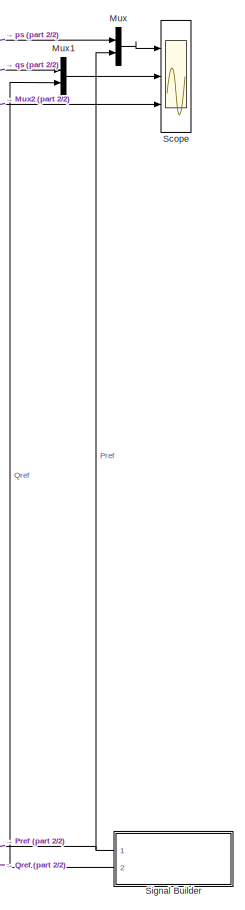
[diagram: root canvas - part 1/2, right side, full height]
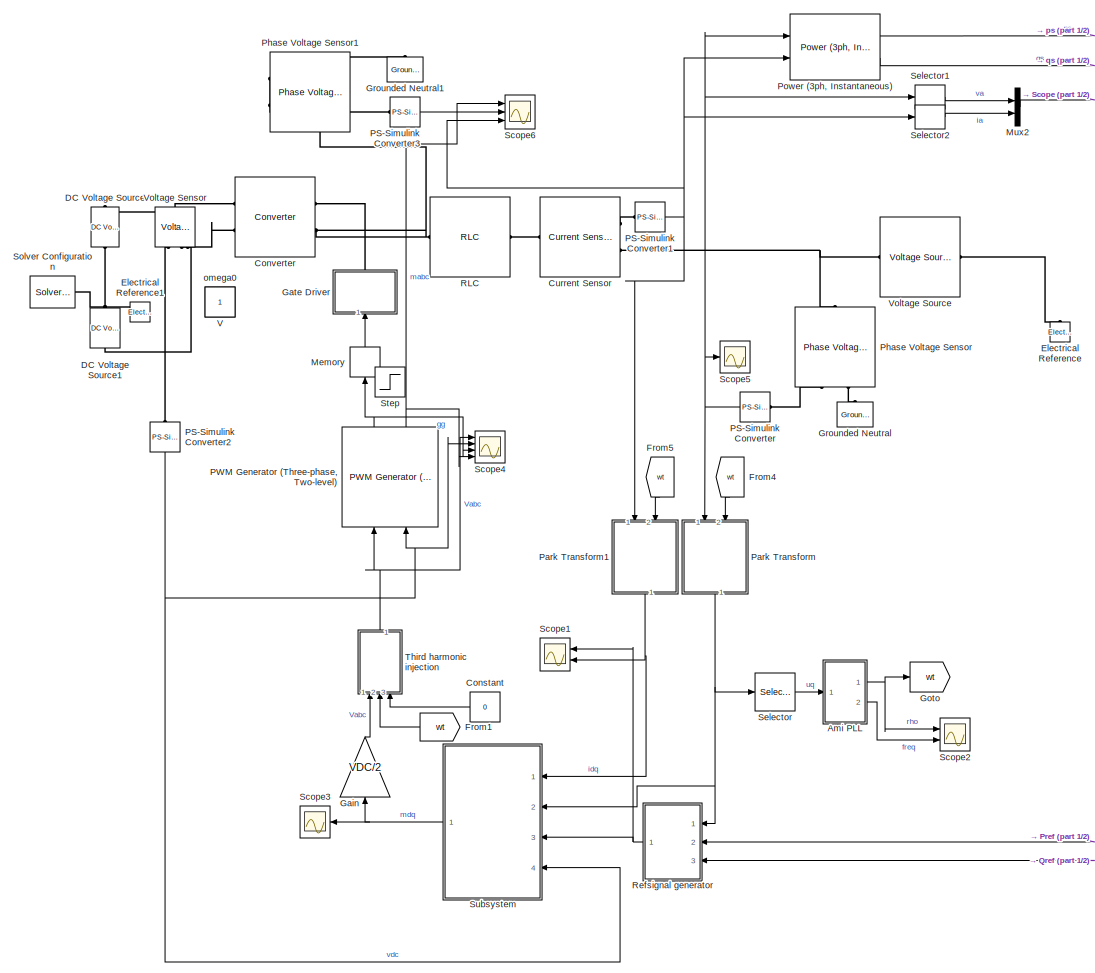
[diagram: root canvas - part 2/2, most of the canvas]
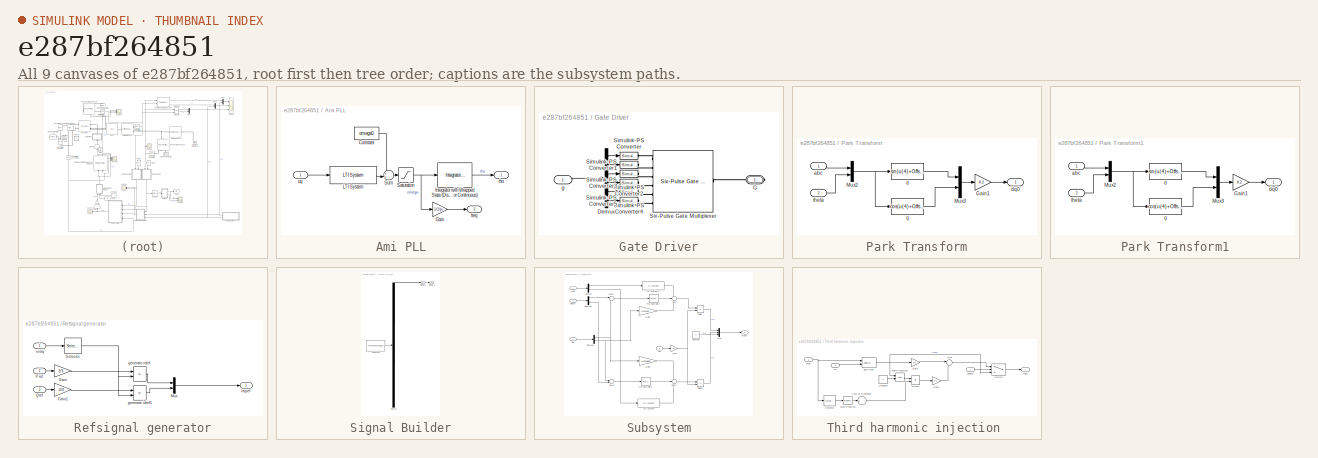
[diagram: thumbnail index - all 9 canvases of the model, root first then tree order]
MODEL slx_e287bf264851
KIND model
CONFIG AbsTol = auto
CONFIG EnableMultiTasking = off
CONFIG FixedStep = 2e-5
CONFIG InitFcn = current_controlled_VSC_ami8p2_design\n
CONFIG MaxStep = 2e-5
CONFIG MinStep = auto
CONFIG RelTol = 1e-3
CONFIG SampleTimeConstraint = Unconstrained
CONFIG Solver = VariableStepAuto
CONFIG SolverName = VariableStepAuto
CONFIG StartTime = 0.0
CONFIG StopTime = 0.5
BLOCK [SubSystem] Ami PLL
  Ports = [1, 2]
  RequestExecContextInheritance = off
  Variant = off
BLOCK [Constant] Ami PLL/Constant
  Value = omega0
BLOCK [Gain] Ami PLL/Gain
  Gain = 1/2/pi
  OutDataTypeStr = Inherit: Inherit via internal rule
  ParamDataTypeStr = Inherit: Inherit via internal rule
  SaturateOnIntegerOverflow = off
BLOCK [Reference] Ami PLL/Integrator with Wrapped State (Discrete or Continuous)  REF=peGeneralControl/Integrator with
Wrapped State
(Discrete or Continuous)
  Ports = [1, 1]
  SourceBlock = peGeneralControl/Integrator with\nWrapped State\n(Discrete or Continuous)
  SourceType = Integrator with Wrapped State (Discrete or Continuous)
BLOCK [Reference] Ami PLL/LTI System  REF=cstblocks/LTI System
  Ports = [1, 1]
  SourceBlock = cstblocks/LTI System
  SourceProductBaseCode = CT
  SourceProductName = Control System Toolbox
  SourceType = LTI Block
BLOCK [Saturate] Ami PLL/Saturation
  InputPortMap = u0
  LowerLimit = PLL_wmin
  Ports = [1, 1]
  UpperLimit = PLL_wmax
BLOCK [Sum] Ami PLL/Sum
  IconShape = round
  InputSameDT = off
  Inputs = ++|
  OutDataTypeStr = Inherit: Inherit via internal rule
  Ports = [2, 1]
  SaturateOnIntegerOverflow = off
BLOCK [Outport] Ami PLL/freq
  IconDisplay = Port number
  Port = 2
BLOCK [Outport] Ami PLL/rho
  IconDisplay = Port number
BLOCK [Inport] Ami PLL/uq
  IconDisplay = Port number
BLOCK [Constant] Constant
  Value = 0
BLOCK [Reference] Converter  REF=pe_lib/Semiconductors/Converter
  Ports = [0, 0, 0, 0, 0, 2, 2]
  SourceBlock = pe_lib/Semiconductors/Converter
  SourceProductBaseCode = PS
  SourceProductName = Simscape Power Systems
  SourceType = Converter
BLOCK [Reference] Current Sensor  REF=pe_lib/Sensors/Current Sensor
  Ports = [0, 0, 0, 0, 0, 1, 2]
  SourceBlock = pe_lib/Sensors/Current Sensor
  SourceProductBaseCode = PS
  SourceProductName = Simscape Power Systems
  SourceType = Current Sensor
BLOCK [Reference] DC Voltage Source  REF=fl_lib/Electrical/Electrical Sources/DC Voltage Source
  Ports = [0, 0, 0, 0, 0, 1, 1]
  SourceBlock = fl_lib/Electrical/Electrical Sources/DC Voltage Source
  SourceProductBaseCode = SS
  SourceProductName = Simscape
  SourceType = DC Voltage Source
BLOCK [Reference] DC Voltage Source1  REF=fl_lib/Electrical/Electrical Sources/DC Voltage Source
  Ports = [0, 0, 0, 0, 0, 1, 1]
  SourceBlock = fl_lib/Electrical/Electrical Sources/DC Voltage Source
  SourceProductBaseCode = SS
  SourceProductName = Simscape
  SourceType = DC Voltage Source
BLOCK [Reference] Electrical Reference  REF=fl_lib/Electrical/Electrical Elements/Electrical Reference
  Ports = [0, 0, 0, 0, 0, 1]
  SourceBlock = fl_lib/Electrical/Electrical Elements/Electrical Reference
  SourceProductBaseCode = SS
  SourceProductName = Simscape
  SourceType = Electrical Reference
BLOCK [Reference] Electrical Reference1  REF=fl_lib/Electrical/Electrical Elements/Electrical Reference
  Ports = [0, 0, 0, 0, 0, 1]
  SourceBlock = fl_lib/Electrical/Electrical Elements/Electrical Reference
  SourceProductBaseCode = SS
  SourceProductName = Simscape
  SourceType = Electrical Reference
BLOCK [From] From1
  GotoTag = wt
BLOCK [From] From4
  GotoTag = wt
BLOCK [From] From5
  GotoTag = wt
BLOCK [Gain] Gain
  Gain = VDC/2
  OutDataTypeStr = Inherit: Inherit via internal rule
  ParamDataTypeStr = Inherit: Inherit via internal rule
  SaturateOnIntegerOverflow = off
BLOCK [SubSystem] Gate Driver
  Ports = [1, 0, 0, 0, 0, 0, 1]
  RequestExecContextInheritance = off
  Variant = off
BLOCK [Demux] Gate Driver/Demux
  DisplayOption = bar
  Outputs = 6
  Ports = [1, 6]
BLOCK [PMIOPort] Gate Driver/G
  Port = 1
  Side = Right
BLOCK [Reference] Gate Driver/Simulink-PS Converter  REF=nesl_utility/Simulink-PS
Converter
  Ports = [1, 0, 0, 0, 0, 0, 1]
  SourceBlock = nesl_utility/Simulink-PS\nConverter
  SourceProductBaseCode = SS
  SourceProductName = Simscape
  SourceType = Simulink-PS\nConverter
BLOCK [Reference] Gate Driver/Simulink-PS Converter1  REF=nesl_utility/Simulink-PS
Converter
  Ports = [1, 0, 0, 0, 0, 0, 1]
  SourceBlock = nesl_utility/Simulink-PS\nConverter
  SourceProductBaseCode = SS
  SourceProductName = Simscape
  SourceType = Simulink-PS\nConverter
BLOCK [Reference] Gate Driver/Simulink-PS Converter2  REF=nesl_utility/Simulink-PS
Converter
  Ports = [1, 0, 0, 0, 0, 0, 1]
  SourceBlock = nesl_utility/Simulink-PS\nConverter
  SourceProductBaseCode = SS
  SourceProductName = Simscape
  SourceType = Simulink-PS\nConverter
BLOCK [Reference] Gate Driver/Simulink-PS Converter3  REF=nesl_utility/Simulink-PS
Converter
  Ports = [1, 0, 0, 0, 0, 0, 1]
  SourceBlock = nesl_utility/Simulink-PS\nConverter
  SourceProductBaseCode = SS
  SourceProductName = Simscape
  SourceType = Simulink-PS\nConverter
BLOCK [Reference] Gate Driver/Simulink-PS Converter4  REF=nesl_utility/Simulink-PS
Converter
  Ports = [1, 0, 0, 0, 0, 0, 1]
  SourceBlock = nesl_utility/Simulink-PS\nConverter
  SourceProductBaseCode = SS
  SourceProductName = Simscape
  SourceType = Simulink-PS\nConverter
BLOCK [Reference] Gate Driver/Simulink-PS Converter5  REF=nesl_utility/Simulink-PS
Converter
  Ports = [1, 0, 0, 0, 0, 0, 1]
  SourceBlock = nesl_utility/Simulink-PS\nConverter
  SourceProductBaseCode = SS
  SourceProductName = Simscape
  SourceType = Simulink-PS\nConverter
BLOCK [Reference] Gate Driver/Six-Pulse Gate Multiplexer  REF=pe_lib/Semiconductors/Six-Pulse Gate
Multiplexer
  Ports = [0, 0, 0, 0, 0, 6, 1]
  SourceBlock = pe_lib/Semiconductors/Six-Pulse Gate\nMultiplexer
  SourceProductBaseCode = PS
  SourceProductName = Simscape Power Systems
  SourceType = Six-Pulse Gate\nMultiplexer
BLOCK [Inport] Gate Driver/g
  IconDisplay = Port number
BLOCK [Goto] Goto
  GotoTag = wt
BLOCK [Reference] Grounded Neutral  REF=pe_lib/Connections/Grounded Neutral
  Ports = [0, 0, 0, 0, 0, 1]
  SourceBlock = pe_lib/Connections/Grounded Neutral
  SourceProductBaseCode = PS
  SourceProductName = Simscape Power Systems
  SourceType = Grounded Neutral
BLOCK [Reference] Grounded Neutral1  REF=pe_lib/Connections/Grounded Neutral
  Ports = [0, 0, 0, 0, 0, 1]
  SourceBlock = pe_lib/Connections/Grounded Neutral
  SourceProductBaseCode = PS
  SourceProductName = Simscape Power Systems
  SourceType = Grounded Neutral
BLOCK [Memory] Memory
BLOCK [Mux] Mux
  DisplayOption = bar
  Inputs = 2
  Ports = [2, 1]
BLOCK [Mux] Mux1
  DisplayOption = bar
  Inputs = 2
  Ports = [2, 1]
BLOCK [Mux] Mux2
  DisplayOption = bar
  Inputs = 2
  Ports = [2, 1]
BLOCK [Reference] PS-Simulink Converter  REF=nesl_utility/PS-Simulink
Converter
  Ports = [0, 1, 0, 0, 0, 1]
  SourceBlock = nesl_utility/PS-Simulink\nConverter
  SourceProductBaseCode = SS
  SourceProductName = Simscape
  SourceType = PS-Simulink\nConverter
BLOCK [Reference] PS-Simulink Converter1  REF=nesl_utility/PS-Simulink
Converter
  Ports = [0, 1, 0, 0, 0, 1]
  SourceBlock = nesl_utility/PS-Simulink\nConverter
  SourceProductBaseCode = SS
  SourceProductName = Simscape
  SourceType = PS-Simulink\nConverter
BLOCK [Reference] PS-Simulink Converter2  REF=nesl_utility/PS-Simulink
Converter
  Ports = [0, 1, 0, 0, 0, 1]
  SourceBlock = nesl_utility/PS-Simulink\nConverter
  SourceProductBaseCode = SS
  SourceProductName = Simscape
  SourceType = PS-Simulink\nConverter
BLOCK [Reference] PS-Simulink Converter3  REF=nesl_utility/PS-Simulink
Converter
  Ports = [0, 1, 0, 0, 0, 1]
  SourceBlock = nesl_utility/PS-Simulink\nConverter
  SourceProductBaseCode = SS
  SourceProductName = Simscape
  SourceType = PS-Simulink\nConverter
BLOCK [Reference] PWM Generator (Three-phase, Two-level)  REF=pePwmGeneratorTwoLevel/PWM Generator
(Three-phase, Two-level)
  Ports = [2, 2]
  SourceBlock = pePwmGeneratorTwoLevel/PWM Generator\n(Three-phase, Two-level)
  SourceType = PWM Generator (three-phase, two-level)
BLOCK [SubSystem] Park Transform
  AncestorBlock = peTransforms/Park Transform
  CloseFcn = pe_sli_rtmsupport( 'closefcn', gcbh );
  CopyFcn = pe_sli_rtmsupport( 'copyfcn', gcbh );
  DeleteFcn = pe_sli_rtmsupport( 'deletefcn', gcbh );
  LoadFcn = pe_sli_rtmsupport( 'loadfcn', gcbh );
  ModelCloseFcn = pe_sli_rtmsupport( 'modelclosefcn', gcbh );
  OpenFcn = pe_sli_rtmsupport( 'openfcn', gcbh );
  Ports = [2, 1]
  PostSaveFcn = pe_sli_rtmsupport( 'postsavefcn', gcbh );
  PreCopyFcn = pe_sli_rtmsupport( 'precopyfcn', gcbh );
  PreDeleteFcn = pe_sli_rtmsupport( 'predeletefcn', gcbh );
  RequestExecContextInheritance = off
  Variant = off
BLOCK [Gain] Park Transform/Gain1
  Gain = K2
  OutDataTypeStr = Inherit: Inherit via internal rule
  ParamDataTypeStr = Inherit: Inherit via internal rule
  SaturateOnIntegerOverflow = off
BLOCK [Mux] Park Transform/Mux2
  DisplayOption = bar
  Inputs = 2
  Ports = [2, 1]
BLOCK [Mux] Park Transform/Mux3
  DisplayOption = bar
  Inputs = 2
  Ports = [2, 1]
BLOCK [Inport] Park Transform/abc
  IconDisplay = Port number
BLOCK [Fcn] Park Transform/d
  Expr = sin(u(4)+Offset)*u(1) + sin(u(4)+Offset-2*pi/3)*u(2) + sin(u(4)+Offset+2*pi/3)*u(3)
BLOCK [Outport] Park Transform/dq0
  IconDisplay = Port number
BLOCK [Fcn] Park Transform/q
  Expr = cos(u(4)+Offset)*u(1) + cos(u(4)+Offset-2*pi/3)*u(2) + cos(u(4)+Offset+2*pi/3)*u(3)
BLOCK [Inport] Park Transform/theta
  IconDisplay = Port number
  Port = 2
BLOCK [SubSystem] Park Transform1
  AncestorBlock = peTransforms/Park Transform
  CloseFcn = pe_sli_rtmsupport( 'closefcn', gcbh );
  CopyFcn = pe_sli_rtmsupport( 'copyfcn', gcbh );
  DeleteFcn = pe_sli_rtmsupport( 'deletefcn', gcbh );
  LoadFcn = pe_sli_rtmsupport( 'loadfcn', gcbh );
  ModelCloseFcn = pe_sli_rtmsupport( 'modelclosefcn', gcbh );
  OpenFcn = pe_sli_rtmsupport( 'openfcn', gcbh );
  Ports = [2, 1]
  PostSaveFcn = pe_sli_rtmsupport( 'postsavefcn', gcbh );
  PreCopyFcn = pe_sli_rtmsupport( 'precopyfcn', gcbh );
  PreDeleteFcn = pe_sli_rtmsupport( 'predeletefcn', gcbh );
  RequestExecContextInheritance = off
  Variant = off
BLOCK [Gain] Park Transform1/Gain1
  Gain = K2
  OutDataTypeStr = Inherit: Inherit via internal rule
  ParamDataTypeStr = Inherit: Inherit via internal rule
  SaturateOnIntegerOverflow = off
BLOCK [Mux] Park Transform1/Mux2
  DisplayOption = bar
  Inputs = 2
  Ports = [2, 1]
BLOCK [Mux] Park Transform1/Mux3
  DisplayOption = bar
  Inputs = 2
  Ports = [2, 1]
BLOCK [Inport] Park Transform1/abc
  IconDisplay = Port number
BLOCK [Fcn] Park Transform1/d
  Expr = sin(u(4)+Offset)*u(1) + sin(u(4)+Offset-2*pi/3)*u(2) + sin(u(4)+Offset+2*pi/3)*u(3)
BLOCK [Outport] Park Transform1/dq0
  IconDisplay = Port number
BLOCK [Fcn] Park Transform1/q
  Expr = cos(u(4)+Offset)*u(1) + cos(u(4)+Offset-2*pi/3)*u(2) + cos(u(4)+Offset+2*pi/3)*u(3)
BLOCK [Inport] Park Transform1/theta
  IconDisplay = Port number
  Port = 2
BLOCK [Reference] Phase Voltage Sensor  REF=pe_lib/Sensors/Phase Voltage Sensor
  Ports = [0, 0, 0, 0, 0, 1, 2]
  SourceBlock = pe_lib/Sensors/Phase Voltage Sensor
  SourceProductBaseCode = PS
  SourceProductName = Simscape Power Systems
  SourceType = Phase Voltage Sensor
BLOCK [Reference] Phase Voltage Sensor1  REF=pe_lib/Sensors/Phase Voltage Sensor
  Ports = [0, 0, 0, 0, 0, 1, 2]
  SourceBlock = pe_lib/Sensors/Phase Voltage Sensor
  SourceProductBaseCode = PS
  SourceProductName = Simscape Power Systems
  SourceType = Phase Voltage Sensor
BLOCK [Reference] Power (3ph, Instantaneous)  REF=powerlib_meascontrol/Measurements/Power
(3ph, Instantaneous)
  Ports = [2, 2]
  SourceBlock = powerlib_meascontrol/Measurements/Power\n(3ph, Instantaneous)
  SourceProductBaseCode = PS
  SourceProductName = Simscape Power Systems
  SourceType = Power (3ph, Instantaneous)
BLOCK [Reference] RLC  REF=pe_lib/Passive Devices/RLC
  Ports = [0, 0, 0, 0, 0, 1, 1]
  SourceBlock = pe_lib/Passive Devices/RLC
  SourceProductBaseCode = PS
  SourceProductName = Simscape Power Systems
  SourceType = RLC
BLOCK [SubSystem] Refsignal generator
  Ports = [3, 1]
  RequestExecContextInheritance = off
  Variant = off
BLOCK [Gain] Refsignal generator/Gain
  Gain = 2/3
  OutDataTypeStr = Inherit: Inherit via internal rule
  ParamDataTypeStr = Inherit: Inherit via internal rule
  SaturateOnIntegerOverflow = off
BLOCK [Gain] Refsignal generator/Gain1
  Gain = -2/3
  OutDataTypeStr = Inherit: Inherit via internal rule
  ParamDataTypeStr = Inherit: Inherit via internal rule
  SaturateOnIntegerOverflow = off
BLOCK [Mux] Refsignal generator/Mux
  DisplayOption = bar
  Inputs = 2
  Ports = [2, 1]
BLOCK [Inport] Refsignal generator/Pref
  IconDisplay = Port number
  Port = 2
BLOCK [Inport] Refsignal generator/Qref
  IconDisplay = Port number
  Port = 3
BLOCK [Selector] Refsignal generator/Selector
  IndexOptions = Index vector (dialog)
  Indices = [1]
  InputPortWidth = 2
  OutputSizes = 1
  Ports = [1, 1]
BLOCK [Product] Refsignal generator/generate idref
  InputSameDT = off
  Inputs = */
  OutDataTypeStr = Inherit: Inherit via internal rule
  Ports = [2, 1]
  RndMeth = Floor
  SaturateOnIntegerOverflow = off
BLOCK [Product] Refsignal generator/generate idref1
  InputSameDT = off
  Inputs = */
  OutDataTypeStr = Inherit: Inherit via internal rule
  Ports = [2, 1]
  RndMeth = Floor
  SaturateOnIntegerOverflow = off
BLOCK [Outport] Refsignal generator/idqref
  IconDisplay = Port number
BLOCK [Inport] Refsignal generator/vsdq
  IconDisplay = Port number
BLOCK [Scope] Scope
  NumInputPorts = 3
  Ports = [3]
  ScopeSpecificationString = Simulink.scopes.TimeScopeBlockCfg('CurrentConfiguration', extmgr.ConfigurationSet(extmgr.Configuration('Core','General UI',true),extmgr.Configuration('Core','Source UI',true),extmgr.Configuration('Sources','WiredSimulink',true),extmgr.Configuration('Visuals','Time Domain',true,'SerializedDisplays',{struct('MinYLimReal','-3297565.11724','MaxYLimReal','3287193.9787','YLabelReal','','MinYLimMag','   ...<+2789ch>
BLOCK [Scope] Scope1
  NumInputPorts = 2
  Ports = [2]
  ScopeSpecificationString = Simulink.scopes.TimeScopeBlockCfg('CurrentConfiguration', extmgr.ConfigurationSet(extmgr.Configuration('Core','General UI',true),extmgr.Configuration('Core','Source UI',true),extmgr.Configuration('Sources','WiredSimulink',true,'DataLoggingVariableName','ScopeData1'),extmgr.Configuration('Visuals','Time Domain',true,'SerializedDisplays',{struct('MinYLimReal','-27745.62536','MaxYLimReal','21729.0335...<+1546ch>
BLOCK [Scope] Scope2
  NumInputPorts = 2
  Ports = [2]
  ScopeSpecificationString = Simulink.scopes.TimeScopeBlockCfg('CurrentConfiguration', extmgr.ConfigurationSet(extmgr.Configuration('Core','General UI',true),extmgr.Configuration('Core','Source UI',true),extmgr.Configuration('Sources','WiredSimulink',true,'DataLoggingVariableName','ScopeData2'),extmgr.Configuration('Visuals','Time Domain',true,'SerializedDisplays',{struct('MinYLimReal','-0.7854','MaxYLimReal','7.06858','YLabe...<+2013ch>
BLOCK [Scope] Scope3
  NumInputPorts = 1
  Ports = [1]
  ScopeSpecificationString = Simulink.scopes.TimeScopeBlockCfg('CurrentConfiguration', extmgr.ConfigurationSet(extmgr.Configuration('Core','General UI',true),extmgr.Configuration('Core','Source UI',true),extmgr.Configuration('Sources','WiredSimulink',true,'DataLoggingVariableName','ScopeData1'),extmgr.Configuration('Visuals','Time Domain',true,'SerializedDisplays',{struct('MinYLimReal','-0.50489','MaxYLimReal','1.83688','YLab...<+1476ch>
BLOCK [Scope] Scope4
  NumInputPorts = 4
  Ports = [4]
  ScopeSpecificationString = Simulink.scopes.TimeScopeBlockCfg('CurrentConfiguration', extmgr.ConfigurationSet(extmgr.Configuration('Core','General UI',true),extmgr.Configuration('Core','Source UI',true),extmgr.Configuration('Sources','WiredSimulink',true,'DataLoggingVariableName','ScopeData2'),extmgr.Configuration('Visuals','Time Domain',true,'SerializedDisplays',{struct('MinYLimReal','-810.90882','MaxYLimReal','810.91077','...<+3624ch>
BLOCK [Scope] Scope5
  NumInputPorts = 1
  Ports = [1]
  ScopeSpecificationString = Simulink.scopes.TimeScopeBlockCfg('CurrentConfiguration', extmgr.ConfigurationSet(extmgr.Configuration('Core','General UI',true),extmgr.Configuration('Core','Source UI',true),extmgr.Configuration('Sources','WiredSimulink',true,'DataLoggingVariableName','ScopeData1'),extmgr.Configuration('Visuals','Time Domain',true,'SerializedDisplays',{struct('MinYLimReal','-489.89795','MaxYLimReal','489.89795','...<+1544ch>
BLOCK [Scope] Scope6
  NumInputPorts = 3
  Ports = [3]
  ScopeSpecificationString = Simulink.scopes.TimeScopeBlockCfg('CurrentConfiguration', extmgr.ConfigurationSet(extmgr.Configuration('Core','General UI',true),extmgr.Configuration('Core','Source UI',true),extmgr.Configuration('Sources','WiredSimulink',true,'DataLoggingVariableName','ScopeData3'),extmgr.Configuration('Visuals','Time Domain',true,'SerializedDisplays',{struct('MinYLimReal','-1.04806','MaxYLimReal','1.04806','YLab...<+2922ch>
BLOCK [Selector] Selector
  IndexOptions = Index vector (dialog)
  Indices = [2]
  InputPortWidth = 2
  OutputSizes = 1
  Ports = [1, 1]
BLOCK [Selector] Selector1
  IndexOptions = Index vector (dialog)
  Indices = [1]
  InputPortWidth = 3
  OutputSizes = 1
  Ports = [1, 1]
BLOCK [Selector] Selector2
  IndexOptions = Index vector (dialog)
  Indices = [1]
  InputPortWidth = 3
  OutputSizes = 1
  Ports = [1, 1]
BLOCK [SubSystem] Signal Builder
  ClipboardFcn = sigbuilder_block('clipboard');
  CloseFcn = sigbuilder_block('close');
  ContinueFcn = sigbuilder_block('continue');
  CopyFcn = sigbuilder_block('copy');
  DeleteFcn = sigbuilder_block('delete');
  LoadFcn = sigbuilder_block('load');
  MaskHideContents = on
  ModelCloseFcn = sigbuilder_block('modelClose');
  NameChangeFcn = sigbuilder_block('namechange');
  OpenFcn = sigbuilder_block('open',[437.6 199.2 550.4 400 ]);
  PauseFcn = sigbuilder_block('pause');
  Ports = [0, 2]
  PreSaveFcn = sigbuilder_block('preSave');
  RequestExecContextInheritance = off
  StartFcn = sigbuilder_block('start');
  StopFcn = sigbuilder_block('stop');
  Tag = STV Subsys
  Variant = off
BLOCK [Demux] Signal Builder/Demux
  Outputs = 2
  Ports = [1, 2]
  Tag = STV Demux
BLOCK [FromWorkspace] Signal Builder/FromWs
  SampleTime = 0
  Tag = STV FromWs
  VariableName = tuvar
  ZeroCross = on
BLOCK [Outport] Signal Builder/Signal 1
  IconDisplay = Port number
  Tag = STV Outport
BLOCK [Outport] Signal Builder/Signal 2
  IconDisplay = Port number
  Port = 2
  Tag = STV Outport
BLOCK [Reference] Solver Configuration  REF=nesl_utility/Solver
Configuration
  Ports = [0, 0, 0, 0, 0, 0, 1]
  SourceBlock = nesl_utility/Solver\nConfiguration
  SourceProductBaseCode = SS
  SourceProductName = Simscape
  SourceType = Solver\nConfiguration
BLOCK [Step] Step
  IOType = siggen
  SampleTime = 0
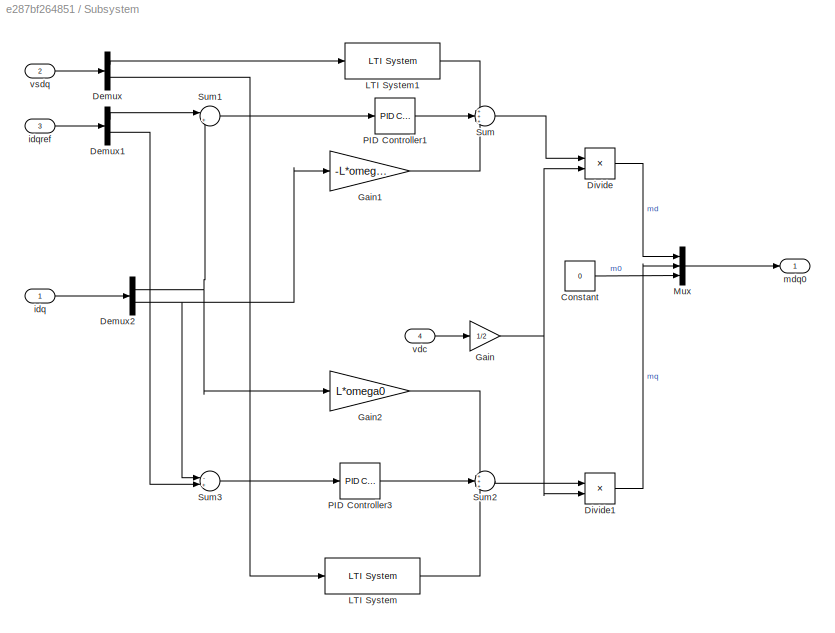
BLOCK [SubSystem] Subsystem
  Ports = [4, 1]
  RequestExecContextInheritance = off
  Variant = off
BLOCK [Constant] Subsystem/Constant
  Value = 0
BLOCK [Demux] Subsystem/Demux
  DisplayOption = bar
  Outputs = 2
  Ports = [1, 2]
BLOCK [Demux] Subsystem/Demux1
  DisplayOption = bar
  Outputs = 2
  Ports = [1, 2]
BLOCK [Demux] Subsystem/Demux2
  DisplayOption = bar
  Outputs = 2
  Ports = [1, 2]
BLOCK [Product] Subsystem/Divide
  InputSameDT = off
  Inputs = */
  OutDataTypeStr = Inherit: Inherit via internal rule
  Ports = [2, 1]
  RndMeth = Floor
  SaturateOnIntegerOverflow = off
BLOCK [Product] Subsystem/Divide1
  InputSameDT = off
  Inputs = */
  OutDataTypeStr = Inherit: Inherit via internal rule
  Ports = [2, 1]
  RndMeth = Floor
  SaturateOnIntegerOverflow = off
BLOCK [Gain] Subsystem/Gain
  Gain = 1/2
  OutDataTypeStr = Inherit: Inherit via internal rule
  ParamDataTypeStr = Inherit: Inherit via internal rule
  SaturateOnIntegerOverflow = off
BLOCK [Gain] Subsystem/Gain1
  Gain = -L*omega0
  OutDataTypeStr = Inherit: Inherit via internal rule
  ParamDataTypeStr = Inherit: Inherit via internal rule
  SaturateOnIntegerOverflow = off
BLOCK [Gain] Subsystem/Gain2
  Gain = L*omega0
  OutDataTypeStr = Inherit: Inherit via internal rule
  ParamDataTypeStr = Inherit: Inherit via internal rule
  SaturateOnIntegerOverflow = off
BLOCK [Reference] Subsystem/LTI System  REF=cstblocks/LTI System
  Ports = [1, 1]
  SourceBlock = cstblocks/LTI System
  SourceProductBaseCode = CT
  SourceProductName = Control System Toolbox
  SourceType = LTI Block
BLOCK [Reference] Subsystem/LTI System1  REF=cstblocks/LTI System
  Ports = [1, 1]
  SourceBlock = cstblocks/LTI System
  SourceProductBaseCode = CT
  SourceProductName = Control System Toolbox
  SourceType = LTI Block
BLOCK [Mux] Subsystem/Mux
  DisplayOption = bar
  Inputs = 3
  Ports = [3, 1]
BLOCK [Reference] Subsystem/PID Controller1  REF=simulink/Continuous/PID Controller
  Ports = [1, 1]
  SourceBlock = simulink/Continuous/PID Controller
  SourceProductBaseCode = SL
  SourceProductName = Simulink
  SourceType = PID 1dof
BLOCK [Reference] Subsystem/PID Controller3  REF=simulink/Continuous/PID Controller
  Ports = [1, 1]
  SourceBlock = simulink/Continuous/PID Controller
  SourceProductBaseCode = SL
  SourceProductName = Simulink
  SourceType = PID 1dof
BLOCK [Sum] Subsystem/Sum
  IconShape = round
  InputSameDT = off
  Inputs = +++
  OutDataTypeStr = Inherit: Inherit via internal rule
  Ports = [3, 1]
  SaturateOnIntegerOverflow = off
BLOCK [Sum] Subsystem/Sum1
  IconShape = round
  InputSameDT = off
  Inputs = |+-
  OutDataTypeStr = Inherit: Inherit via internal rule
  Ports = [2, 1]
  SaturateOnIntegerOverflow = off
BLOCK [Sum] Subsystem/Sum2
  IconShape = round
  InputSameDT = off
  Inputs = +++
  OutDataTypeStr = Inherit: Inherit via internal rule
  Ports = [3, 1]
  SaturateOnIntegerOverflow = off
BLOCK [Sum] Subsystem/Sum3
  IconShape = round
  InputSameDT = off
  Inputs = -+|
  OutDataTypeStr = Inherit: Inherit via internal rule
  Ports = [2, 1]
  SaturateOnIntegerOverflow = off
BLOCK [Inport] Subsystem/idq
  IconDisplay = Port number
BLOCK [Inport] Subsystem/idqref
  IconDisplay = Port number
  Port = 3
BLOCK [Outport] Subsystem/mdq0
  IconDisplay = Port number
BLOCK [Inport] Subsystem/vdc
  IconDisplay = Port number
  Port = 4
BLOCK [Inport] Subsystem/vsdq
  IconDisplay = Port number
  Port = 2
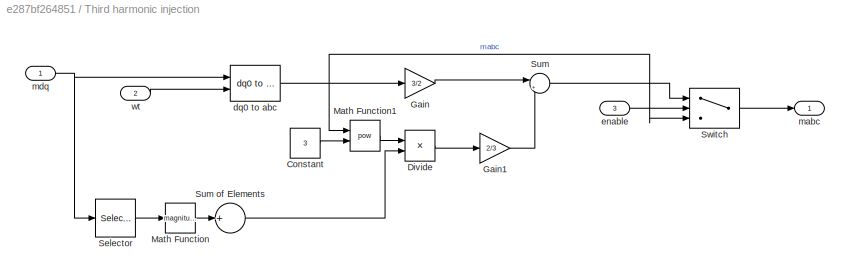
BLOCK [SubSystem] Third harmonic injection 
  Ports = [3, 1]
  RequestExecContextInheritance = off
  Variant = off
BLOCK [Constant] Third harmonic injection /Constant
  Value = 3
BLOCK [Product] Third harmonic injection /Divide
  InputSameDT = off
  Inputs = */
  OutDataTypeStr = Inherit: Inherit via internal rule
  Ports = [2, 1]
  RndMeth = Floor
  SaturateOnIntegerOverflow = off
BLOCK [Gain] Third harmonic injection /Gain
  Gain = 3/2
  OutDataTypeStr = Inherit: Inherit via internal rule
  ParamDataTypeStr = Inherit: Inherit via internal rule
  SaturateOnIntegerOverflow = off
BLOCK [Gain] Third harmonic injection /Gain1
  Gain = 2/3
  OutDataTypeStr = Inherit: Inherit via internal rule
  ParamDataTypeStr = Inherit: Inherit via internal rule
  SaturateOnIntegerOverflow = off
BLOCK [Math] Third harmonic injection /Math Function
  Operator = magnitude^2
  Ports = [1, 1]
BLOCK [Math] Third harmonic injection /Math Function1
  Operator = pow
  Ports = [2, 1]
BLOCK [Selector] Third harmonic injection /Selector
  IndexOptions = Index vector (dialog)
  Indices = [1 2]
  InputPortWidth = 3
  OutputSizes = 1
  Ports = [1, 1]
BLOCK [Sum] Third harmonic injection /Sum
  IconShape = round
  InputSameDT = off
  Inputs = |+-
  OutDataTypeStr = Inherit: Inherit via internal rule
  Ports = [2, 1]
  SaturateOnIntegerOverflow = off
BLOCK [Sum] Third harmonic injection /Sum of Elements
  InputSameDT = off
  Inputs = +
  OutDataTypeStr = Inherit: Inherit via internal rule
  Ports = [1, 1]
  SaturateOnIntegerOverflow = off
BLOCK [Switch] Third harmonic injection /Switch
  Criteria = u2 > Threshold
  InputSameDT = off
  SaturateOnIntegerOverflow = off
BLOCK [Reference] Third harmonic injection /dq0 to abc  REF=powerlib_meascontrol/Transformations/dq0 to abc
  Ports = [2, 1]
  SourceBlock = powerlib_meascontrol/Transformations/dq0 to abc
  SourceProductBaseCode = PS
  SourceProductName = Simscape Power Systems
  SourceType = dq0 to abc Transformation
BLOCK [Inport] Third harmonic injection /enable
  IconDisplay = Port number
  Port = 3
BLOCK [Outport] Third harmonic injection /mabc
  IconDisplay = Port number
BLOCK [Inport] Third harmonic injection /mdq
  IconDisplay = Port number
BLOCK [Inport] Third harmonic injection /wt
  IconDisplay = Port number
  Port = 2
BLOCK [Constant] V
  IOType = siggen
BLOCK [Reference] Voltage Sensor  REF=fl_lib/Electrical/Electrical Sensors/Voltage Sensor
  Ports = [0, 0, 0, 0, 0, 1, 2]
  SourceBlock = fl_lib/Electrical/Electrical Sensors/Voltage Sensor
  SourceProductBaseCode = SS
  SourceProductName = Simscape
  SourceType = Voltage Sensor
BLOCK [Reference] Voltage Source  REF=pe_lib/Sources/Voltage Source
  Ports = [0, 0, 0, 0, 0, 1, 1]
  SourceBlock = pe_lib/Sources/Voltage Source
  SourceProductBaseCode = PS
  SourceProductName = Simscape Power Systems
  SourceType = Voltage Source
BLOCK [Constant] omega0
  IOType = siggen
LINE Ami PLL/Constant:1 -> Ami PLL/Sum:1
LINE Ami PLL/Gain:1 -> Ami PLL/freq:1
LINE Ami PLL/Integrator with Wrapped State (Discrete or Continuous):1 -> Ami PLL/rho:1
LINE Ami PLL/LTI System:1 -> Ami PLL/Sum:2
NET Ami PLL/Saturation:1 -> Ami PLL/Gain:1, Ami PLL/Integrator with Wrapped State (Discrete or Continuous):1
LINE Ami PLL/Sum:1 -> Ami PLL/Saturation:1
LINE Ami PLL/uq:1 -> Ami PLL/LTI System:1
NET Ami PLL:1 -> Goto:1, Scope2:1
LINE Ami PLL:2 -> Scope2:2
LINE Constant:1 -> Third harmonic injection :3
LINE From1:1 -> Third harmonic injection :2
LINE From4:1 -> Park Transform:2
LINE From5:1 -> Park Transform1:2
LINE Gain:1 -> Third harmonic injection :1
LINE Gate Driver/Demux:1 -> Gate Driver/Simulink-PS Converter:1
LINE Gate Driver/Demux:2 -> Gate Driver/Simulink-PS Converter1:1
LINE Gate Driver/Demux:3 -> Gate Driver/Simulink-PS Converter2:1
LINE Gate Driver/Demux:4 -> Gate Driver/Simulink-PS Converter3:1
LINE Gate Driver/Demux:5 -> Gate Driver/Simulink-PS Converter4:1
LINE Gate Driver/Demux:6 -> Gate Driver/Simulink-PS Converter5:1
LINE Gate Driver/g:1 -> Gate Driver/Demux:1
LINE Memory:1 -> Gate Driver:1
LINE Mux1:1 -> Scope:2
LINE Mux2:1 -> Scope:3
LINE Mux:1 -> Scope:1
NET PS-Simulink Converter1:1 -> Park Transform1:1, Power (3ph, Instantaneous):2, Scope6:3, Selector2:1
NET PS-Simulink Converter2:1 -> PWM Generator (Three-phase, Two-level):2, Scope4:2, Subsystem:4
LINE PS-Simulink Converter3:1 -> Scope6:2
NET PS-Simulink Converter:1 -> Park Transform:1, Power (3ph, Instantaneous):1, Scope5:1, Selector1:1
NET PWM Generator (Three-phase, Two-level):1 -> Memory:1, Scope4:3
NET PWM Generator (Three-phase, Two-level):2 -> Scope4:4, Scope6:1
NET Park Transform1:1 -> Scope1:2, Subsystem:1
NET Park Transform:1 -> Refsignal generator:1, Selector:1, Subsystem:2
LINE Power (3ph, Instantaneous):1 -> Mux:1
LINE Power (3ph, Instantaneous):2 -> Mux1:1
LINE Refsignal generator/Gain1:1 -> Refsignal generator/generate idref1:1
LINE Refsignal generator/Gain:1 -> Refsignal generator/generate idref:1
LINE Refsignal generator/Mux:1 -> Refsignal generator/idqref:1
LINE Refsignal generator/Pref:1 -> Refsignal generator/Gain:1
LINE Refsignal generator/Qref:1 -> Refsignal generator/Gain1:1
NET Refsignal generator/Selector:1 -> Refsignal generator/generate idref1:2, Refsignal generator/generate idref:2
LINE Refsignal generator/generate idref1:1 -> Refsignal generator/Mux:2
LINE Refsignal generator/generate idref:1 -> Refsignal generator/Mux:1
LINE Refsignal generator/vsdq:1 -> Refsignal generator/Selector:1
NET Refsignal generator:1 -> Scope1:1, Subsystem:3
LINE Selector1:1 -> Mux2:1
LINE Selector2:1 -> Mux2:2
LINE Selector:1 -> Ami PLL:1
NET Signal Builder:1 -> Mux:2, Refsignal generator:2
NET Signal Builder:2 -> Mux1:2, Refsignal generator:3
LINE Subsystem/Constant:1 -> Subsystem/Mux:3
LINE Subsystem/Demux1:1 -> Subsystem/Sum1:1
LINE Subsystem/Demux1:2 -> Subsystem/Sum3:2
NET Subsystem/Demux2:1 -> Subsystem/Gain2:1, Subsystem/Sum1:2
NET Subsystem/Demux2:2 -> Subsystem/Gain1:1, Subsystem/Sum3:1
LINE Subsystem/Demux:1 -> Subsystem/LTI System1:1
LINE Subsystem/Demux:2 -> Subsystem/LTI System:1
LINE Subsystem/Divide1:1 -> Subsystem/Mux:2
LINE Subsystem/Divide:1 -> Subsystem/Mux:1
LINE Subsystem/Gain1:1 -> Subsystem/Sum:3
LINE Subsystem/Gain2:1 -> Subsystem/Sum2:1
NET Subsystem/Gain:1 -> Subsystem/Divide1:2, Subsystem/Divide:2
LINE Subsystem/LTI System1:1 -> Subsystem/Sum:1
LINE Subsystem/LTI System:1 -> Subsystem/Sum2:3
LINE Subsystem/Mux:1 -> Subsystem/mdq0:1
LINE Subsystem/PID Controller1:1 -> Subsystem/Sum:2
LINE Subsystem/PID Controller3:1 -> Subsystem/Sum2:2
LINE Subsystem/Sum1:1 -> Subsystem/PID Controller1:1
LINE Subsystem/Sum2:1 -> Subsystem/Divide1:1
LINE Subsystem/Sum3:1 -> Subsystem/PID Controller3:1
LINE Subsystem/Sum:1 -> Subsystem/Divide:1
LINE Subsystem/idq:1 -> Subsystem/Demux2:1
LINE Subsystem/idqref:1 -> Subsystem/Demux1:1
LINE Subsystem/vdc:1 -> Subsystem/Gain:1
LINE Subsystem/vsdq:1 -> Subsystem/Demux:1
NET Subsystem:1 -> Gain:1, Scope3:1
LINE Third harmonic injection /Constant:1 -> Third harmonic injection /Math Function1:2
LINE Third harmonic injection /Divide:1 -> Third harmonic injection /Gain1:1
LINE Third harmonic injection /Gain1:1 -> Third harmonic injection /Sum:2
LINE Third harmonic injection /Gain:1 -> Third harmonic injection /Sum:1
LINE Third harmonic injection /Math Function1:1 -> Third harmonic injection /Divide:1
LINE Third harmonic injection /Math Function:1 -> Third harmonic injection /Sum of Elements:1
LINE Third harmonic injection /Selector:1 -> Third harmonic injection /Math Function:1
LINE Third harmonic injection /Sum of Elements:1 -> Third harmonic injection /Divide:2
LINE Third harmonic injection /Sum:1 -> Third harmonic injection /Switch:1
LINE Third harmonic injection /Switch:1 -> Third harmonic injection /mabc:1
NET Third harmonic injection /dq0 to abc:1 -> Third harmonic injection /Gain:1, Third harmonic injection /Math Function1:1, Third harmonic injection /Switch:3
LINE Third harmonic injection /enable:1 -> Third harmonic injection /Switch:2
NET Third harmonic injection /mdq:1 -> Third harmonic injection /Selector:1, Third harmonic injection /dq0 to abc:1
LINE Third harmonic injection /wt:1 -> Third harmonic injection /dq0 to abc:2
NET Third harmonic injection :1 -> PWM Generator (Three-phase, Two-level):1, Scope4:1
PLINE Converter:LConn1 -- Gate Driver:RConn1
PNET net1: Converter:LConn2 -- Phase Voltage Sensor1:LConn1 -- RLC:LConn1
PNET net2: Converter:RConn1 -- DC Voltage Source:LConn1 -- Voltage Sensor:LConn1
PNET net3: Converter:RConn2 -- DC Voltage Source1:RConn1 -- Voltage Sensor:RConn2
PLINE Current Sensor:LConn1 -- RLC:RConn1
PLINE Current Sensor:RConn1 -- PS-Simulink Converter1:LConn1
PNET net4: Current Sensor:RConn2 -- Phase Voltage Sensor:LConn1 -- Voltage Source:RConn1
PNET net5: DC Voltage Source1:LConn1 -- DC Voltage Source:RConn1 -- Electrical Reference1:LConn1 -- Solver Configuration:RConn1
PLINE Electrical Reference:LConn1 -- Voltage Source:LConn1
PLINE Gate Driver/G:RConn1 -- Gate Driver/Six-Pulse Gate Multiplexer:RConn1
PLINE Gate Driver/Simulink-PS Converter1:RConn1 -- Gate Driver/Six-Pulse Gate Multiplexer:LConn2
PLINE Gate Driver/Simulink-PS Converter2:RConn1 -- Gate Driver/Six-Pulse Gate Multiplexer:LConn3
PLINE Gate Driver/Simulink-PS Converter3:RConn1 -- Gate Driver/Six-Pulse Gate Multiplexer:LConn4
PLINE Gate Driver/Simulink-PS Converter4:RConn1 -- Gate Driver/Six-Pulse Gate Multiplexer:LConn5
PLINE Gate Driver/Simulink-PS Converter5:RConn1 -- Gate Driver/Six-Pulse Gate Multiplexer:LConn6
PLINE Gate Driver/Simulink-PS Converter:RConn1 -- Gate Driver/Six-Pulse Gate Multiplexer:LConn1
PLINE Grounded Neutral1:LConn1 -- Phase Voltage Sensor1:RConn2
PLINE Grounded Neutral:LConn1 -- Phase Voltage Sensor:RConn2
PLINE PS-Simulink Converter2:LConn1 -- Voltage Sensor:RConn1
PLINE PS-Simulink Converter3:LConn1 -- Phase Voltage Sensor1:RConn1
PLINE PS-Simulink Converter:LConn1 -- Phase Voltage Sensor:RConn1
note: NET lines group one-source signal fan-out (src -> all destinations, sorted); 1:1 wires keep LINE; PNET lines group multi-terminal physical nets as a canonical sorted terminal list (undirected conserving connections); 2-terminal nets keep the pairwise PLINE form
